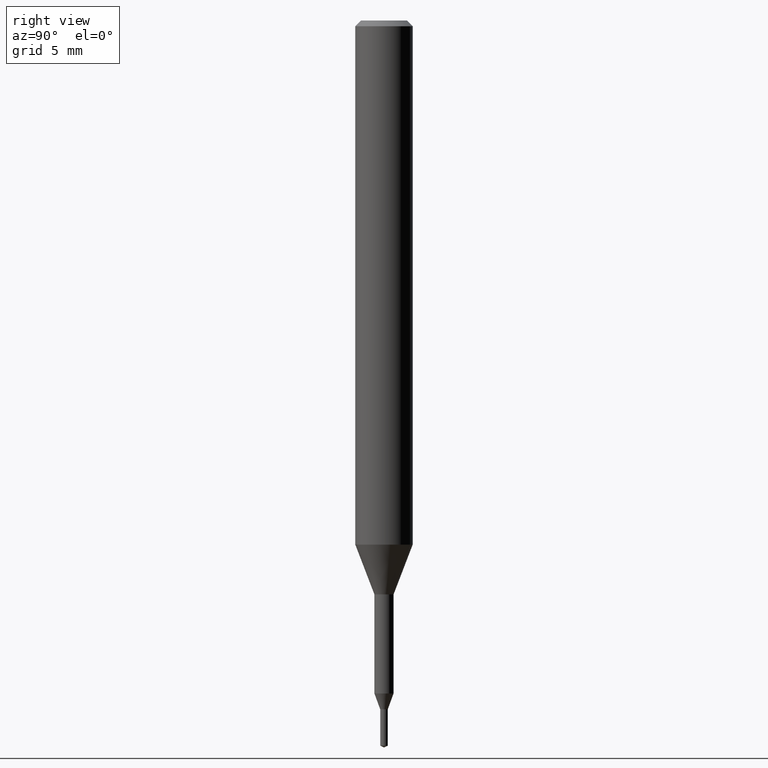
[diagram: clean part render]
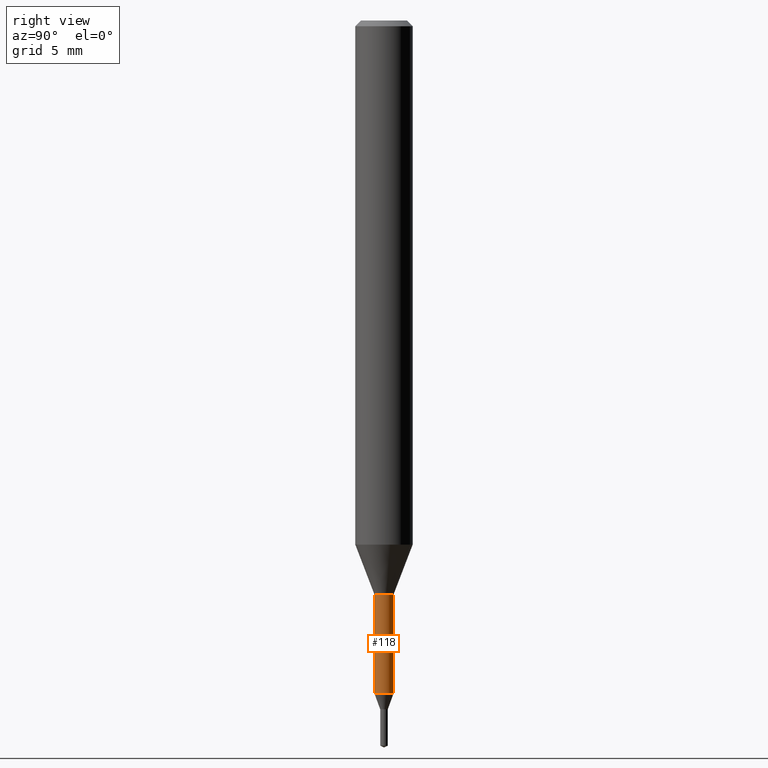
[diagram: same view with one face highlighted and labeled with its STEP entity id]
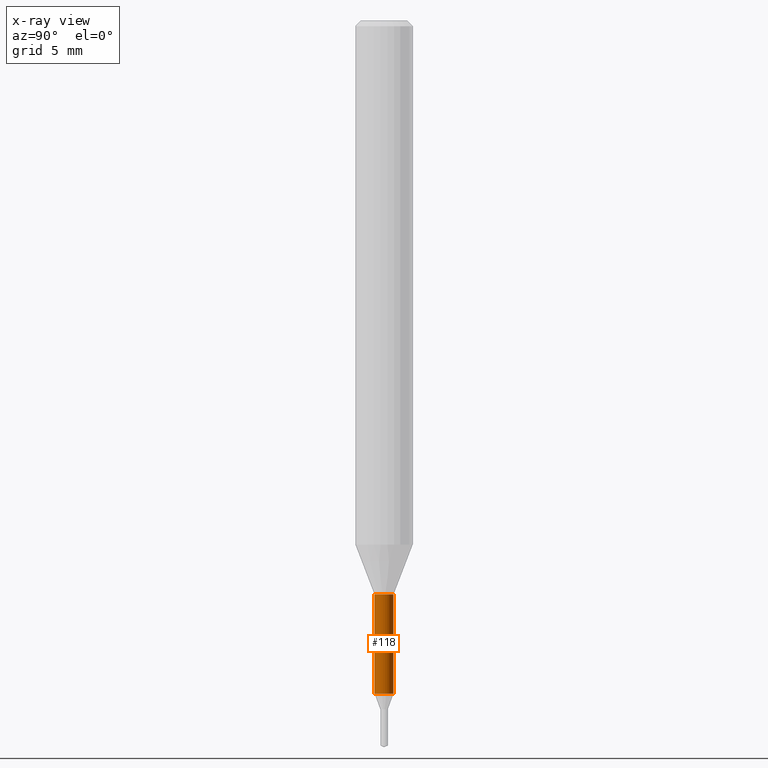
[diagram: x-ray of the same camera — body ghosted, the highlighted face saturated]
A machine part, right view. The second image highlights one B-rep face of the part: STEP entity #118.
The next image is the same camera in x-ray: the body ghosted, the highlighted face saturated — about 0% of this face is hidden behind the body in this view.
In plain terms, the highlighted cylindrical surface (edge-blend (fillet) strip) has radius 0.5 mm, axis along (-0, -0, 1).
Its self-contained STEP definition (entity closure, byte-faithful):
#118=ADVANCED_FACE('',(#296),#297,.T.);
#144=VERTEX_POINT('',#327);
#150=EDGE_CURVE('',#186,#144,#333,.T.);
#186=VERTEX_POINT('',#373);
#224=VERTEX_POINT('',#415);
#246=EDGE_CURVE('',#224,#258,#441,.T.);
#254=EDGE_CURVE('',#186,#258,#452,.T.);
#258=VERTEX_POINT('',#456);
#262=EDGE_CURVE('',#144,#224,#460,.T.);
#296=FACE_OUTER_BOUND('',#487,.T.);
#297=CYLINDRICAL_SURFACE('',#488,0.49995);
#327=CARTESIAN_POINT('',(0.0,0.49995,-35.176));
#333=LINE('',#532,#533);
#373=CARTESIAN_POINT('',(0.0,0.49995,-30.0));
#415=CARTESIAN_POINT('',(6.12241946593498E-017,-0.49995,-35.176));
#441=LINE('',#675,#676);
#452=CIRCLE('',#688,0.49995);
#456=CARTESIAN_POINT('',(6.12241946593498E-017,-0.49995,-30.0));
#460=CIRCLE('',#697,0.49995);
#487=EDGE_LOOP('',(#720,#721,#722,#723));
#488=AXIS2_PLACEMENT_3D('',#724,#725,#726);
#532=CARTESIAN_POINT('',(-6.12241946593498E-017,0.49995,-32.588));
#533=VECTOR('',#769,1.0);
#675=CARTESIAN_POINT('',(6.12241946593498E-017,-0.49995,-32.588));
#676=VECTOR('',#904,1.0);
#688=AXIS2_PLACEMENT_3D('',#929,#930,#931);
#697=AXIS2_PLACEMENT_3D('',#932,#933,#934);
#720=ORIENTED_EDGE('',*,*,#150,.F.);
#721=ORIENTED_EDGE('',*,*,#254,.T.);
#722=ORIENTED_EDGE('',*,*,#246,.F.);
#723=ORIENTED_EDGE('',*,*,#262,.F.);
#724=CARTESIAN_POINT('',(0.0,0.0,-32.588));
#725=DIRECTION('',(-0.0,-0.0,1.0));
#726=DIRECTION('',(0.0,1.0,0.0));
#769=DIRECTION('',(0.0,0.0,-1.0));
#904=DIRECTION('',(-0.0,-0.0,1.0));
#929=CARTESIAN_POINT('',(0.0,0.0,-30.0));
#930=DIRECTION('',(0.0,0.0,-1.0));
#931=DIRECTION('',(0.0,1.0,0.0));
#932=CARTESIAN_POINT('',(0.0,0.0,-35.176));
#933=DIRECTION('',(0.0,0.0,-1.0));
#934=DIRECTION('',(0.0,1.0,0.0));